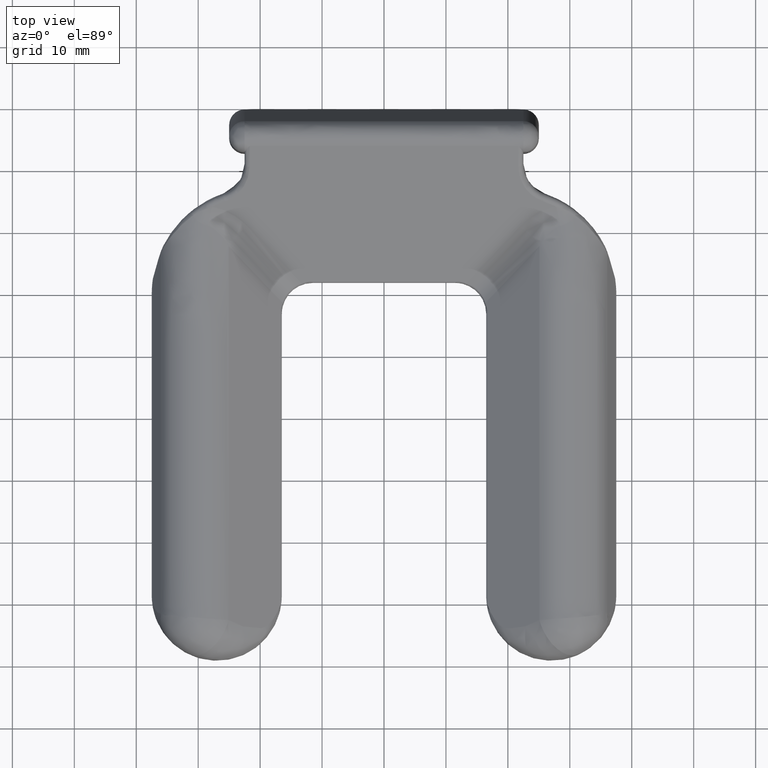
[diagram: clean part render]
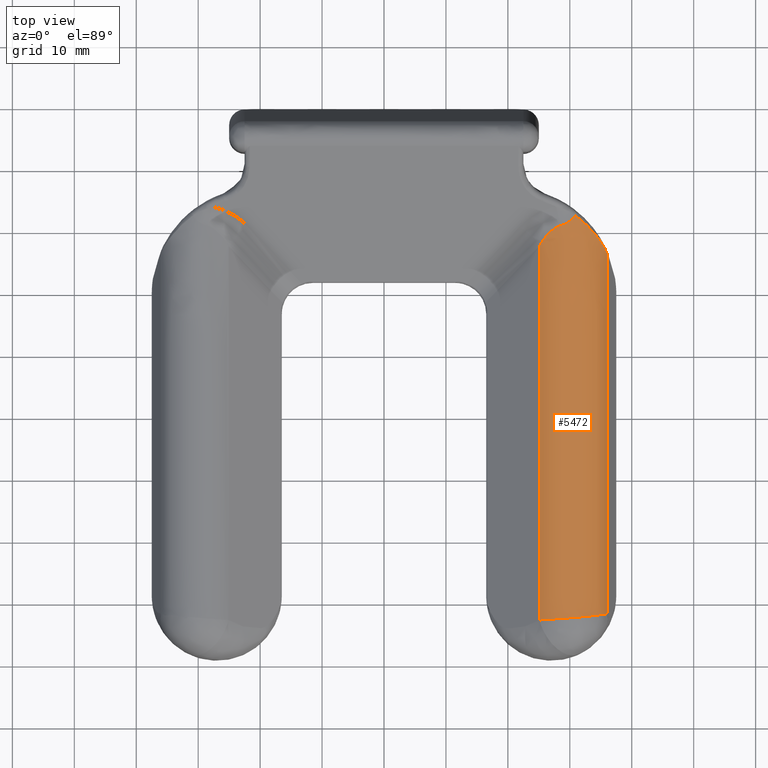
[diagram: same view with one face highlighted and labeled with its STEP entity id]
A machine part, top view. The second image highlights one B-rep face of the part: STEP entity #5472.
In plain terms, the highlighted face is a freeform B-spline surface patch.
Its self-contained STEP definition (entity closure, byte-faithful):
#3098=CARTESIAN_POINT('',(25.080732248594199,-22.231092365618149,9.442037946899319));
#3099=VERTEX_POINT('',#3098);
#3113=CARTESIAN_POINT('',(28.476199191799800,-18.961579891061699,10.927147848513661));
#3114=VERTEX_POINT('',#3113);
#3115=CARTESIAN_POINT('',(28.476199191799800,-18.961579891061699,10.927147848513661));
#3116=CARTESIAN_POINT('',(26.574626855563217,-19.570324436418741,10.650637953261995));
#3117=CARTESIAN_POINT('',(25.080732248594138,-22.231092365618121,9.442037946899246));
#3125=(BOUNDED_CURVE()B_SPLINE_CURVE(2,(#3115,#3116,#3117),.UNSPECIFIED.,.F.,.U.)CURVE()GEOMETRIC_REPRESENTATION_ITEM()QUASI_UNIFORM_CURVE()RATIONAL_B_SPLINE_CURVE((1.0,0.964326064811125,1.0))REPRESENTATION_ITEM(''));
#3126=EDGE_CURVE('',#3114,#3099,#3125,.T.);
#3473=CARTESIAN_POINT('',(25.080732248594199,-82.600092383999495,9.442037946899319));
#3474=VERTEX_POINT('',#3473);
#3513=CARTESIAN_POINT('',(25.080732248594199,-82.600092383999495,9.442037946899319));
#3514=CARTESIAN_POINT('',(25.080732248594199,-22.231092365618149,9.442037946899319));
#3515=QUASI_UNIFORM_CURVE('',1,(#3513,#3514),.UNSPECIFIED.,.F.,.U.);
#3516=EDGE_CURVE('',#3474,#3099,#3515,.T.);
#4804=CARTESIAN_POINT('',(36.107156005825757,-84.233469618168641,6.251483933545202));
#4805=CARTESIAN_POINT('',(36.106992641371747,-83.875955527518556,6.251419539067839));
#4806=CARTESIAN_POINT('',(36.107168063712372,-83.429062917143526,6.251481068185816));
#4807=CARTESIAN_POINT('',(36.106685672588434,-82.892791794536464,6.251288335331402));
#4808=CARTESIAN_POINT('',(36.106613183531572,-82.624656234339994,6.251260801715273));
#4809=CARTESIAN_POINT('',(36.106949101987091,-82.401209933956082,6.251396723705101));
#4810=CARTESIAN_POINT('',(36.107609759312133,-82.222452896355321,6.251661852887811));
#4811=CARTESIAN_POINT('',(36.108585349326347,-82.043695868396242,6.252052510343233));
#4812=CARTESIAN_POINT('',(36.110493790795097,-81.820249618583802,6.252815310521336));
#4813=CARTESIAN_POINT('',(36.113093150470348,-81.462735970417071,6.253851636077891));
#4814=CARTESIAN_POINT('',(36.110677239497001,-80.837086289644660,6.252870509867174));
#4815=CARTESIAN_POINT('',(36.110976358357057,-79.943301100440493,6.252990690286053));
#4816=CARTESIAN_POINT('',(36.110896816876419,-78.870758786629835,6.252960163440354));
#4817=CARTESIAN_POINT('',(36.110933833008687,-77.440702389565558,6.252975575273550));
#4818=CARTESIAN_POINT('',(36.110952722292048,-73.508047280731304,6.252982166579114));
#4819=CARTESIAN_POINT('',(36.110982428719822,-64.212680665096201,6.252993238505793));
#4820=CARTESIAN_POINT('',(36.110950577548621,-49.912116640506433,6.252980182987690));
#4821=CARTESIAN_POINT('',(36.111087724472668,-32.751439814808421,6.253055876948283));
#4822=CARTESIAN_POINT('',(36.110818007789597,-21.310988592773800,6.252904241212878));
#4823=CARTESIAN_POINT('',(36.111028607709123,-15.590762981800070,6.252979047824382));
#4824=CARTESIAN_POINT('',(36.095565015289623,-84.233469624483746,6.285712561285225));
#4825=CARTESIAN_POINT('',(36.095397601480151,-83.875955534142051,6.285646708849242));
#4826=CARTESIAN_POINT('',(36.095595961842868,-83.429062924137227,6.285717314496228));
#4827=CARTESIAN_POINT('',(36.095077185929647,-82.892791802818309,6.285510165359409));
#4828=CARTESIAN_POINT('',(36.094983643145092,-82.624656243465523,6.285474166075565));
#4829=CARTESIAN_POINT('',(36.095307798009323,-82.401209943658500,6.285605106463815));
#4830=CARTESIAN_POINT('',(36.095967191683293,-82.222452905470675,6.285869268956870));
#4831=CARTESIAN_POINT('',(36.096948538714400,-82.043695876184046,6.286261579067772));
#4832=CARTESIAN_POINT('',(36.098879704465467,-81.820249620237945,6.287032220211568));
#4833=CARTESIAN_POINT('',(36.101507601351749,-81.462735991583756,6.288078962546728));
#4834=CARTESIAN_POINT('',(36.098960147459628,-80.837086296901546,6.287050036501499));
#4835=CARTESIAN_POINT('',(36.099405477082982,-79.943301102597218,6.287227798025545));
#4836=CARTESIAN_POINT('',(36.099272954558529,-78.870758788766850,6.287176179962373));
#4837=CARTESIAN_POINT('',(36.099320353125641,-77.440702391194620,6.287195539214830));
#4838=CARTESIAN_POINT('',(36.099329993252027,-73.508047282483659,6.287198593464733));
#4839=CARTESIAN_POINT('',(36.099357392224853,-64.212680666589620,6.287209148300259));
#4840=CARTESIAN_POINT('',(36.099324588293982,-49.912116641575281,6.287194732086173));
#4841=CARTESIAN_POINT('',(36.099457517511127,-32.751439814607238,6.287268293962217));
#4842=CARTESIAN_POINT('',(36.099185699220932,-21.310988592806019,6.287115492817359));
#4843=CARTESIAN_POINT('',(36.099398178458053,-15.590762981820280,6.287191561716376));
#4844=CARTESIAN_POINT('',(36.071866247996823,-84.233469637195014,6.353957046453647));
#4845=CARTESIAN_POINT('',(36.071691908579339,-83.875955547519126,6.353889260726424));
#4846=CARTESIAN_POINT('',(36.071935764347757,-83.429062938203501,6.353976001289917));
#4847=CARTESIAN_POINT('',(36.071350225577177,-82.892791819804444,6.353744907443518));
#4848=CARTESIAN_POINT('',(36.071215548686993,-82.624656262053151,6.353693229467948));
#4849=CARTESIAN_POINT('',(36.071513334398823,-82.401209965196841,6.353812365788182));
#4850=CARTESIAN_POINT('',(36.072162137409087,-82.222452922437910,6.354069300552393));
#4851=CARTESIAN_POINT('',(36.073151318359791,-82.043695909431577,6.354460091797743));
#4852=CARTESIAN_POINT('',(36.075078159521581,-81.820249552565514,6.355219812615525));
#4853=CARTESIAN_POINT('',(36.077862937646401,-81.462736324823183,6.356319544099567));
#4854=CARTESIAN_POINT('',(36.074936781742153,-80.837086200748701,6.355174551615206));
#4855=CARTESIAN_POINT('',(36.075757409387030,-79.943301143910887,6.355491178766551));
#4856=CARTESIAN_POINT('',(36.075503550572712,-78.870758783787053,6.355394057076985));
#4857=CARTESIAN_POINT('',(36.075575472851533,-77.440702396907099,6.355422097013174));
#4858=CARTESIAN_POINT('',(36.075565574334902,-73.508047284954770,6.355417895371778));
#4859=CARTESIAN_POINT('',(36.075588978533908,-64.212680669975924,6.355427568211596));
#4860=CARTESIAN_POINT('',(36.075554048523720,-49.912116643547577,6.355410381068372));
#4861=CARTESIAN_POINT('',(36.075678873213263,-32.751439814254091,6.355479853652184));
#4862=CARTESIAN_POINT('',(36.075402400741218,-21.310988592859719,6.355324417910980));
#4863=CARTESIAN_POINT('',(36.075618930127092,-15.590762981859660,6.355403216709616));
#4864=CARTESIAN_POINT('',(36.040959159046480,-84.233469653250978,6.438717137445695));
#4865=CARTESIAN_POINT('',(36.040837538260938,-83.875955564452866,6.438669547690848));
#4866=CARTESIAN_POINT('',(36.040917976874788,-83.429062956129158,6.438695749412245));
#4867=CARTESIAN_POINT('',(36.040550883299041,-82.892791841447504,6.438546074560656));
#4868=CARTESIAN_POINT('',(36.040477797848993,-82.624656287292609,6.438516340492512));
#4869=CARTESIAN_POINT('',(36.040677257217830,-82.401209992452067,6.438596332644057));
#4870=CARTESIAN_POINT('',(36.041094197378683,-82.222452956209793,6.438763398221773));
#4871=CARTESIAN_POINT('',(36.041715056509751,-82.043695916082910,6.439012061163913));
#4872=CARTESIAN_POINT('',(36.042950007018753,-81.820249649586074,6.439506167407107));
#4873=CARTESIAN_POINT('',(36.044746699279969,-81.462735708285564,6.440224263734793));
#4874=CARTESIAN_POINT('',(36.044455417205832,-80.837086484148443,6.440094195704607));
#4875=CARTESIAN_POINT('',(36.044628905313182,-79.943301059371407,6.440169071832821));
#4876=CARTESIAN_POINT('',(36.044574836191707,-78.870758811287800,6.440145572422670));
#4877=CARTESIAN_POINT('',(36.044587248209467,-77.440702394832613,6.440150949945388));
#4878=CARTESIAN_POINT('',(36.044579843463858,-73.508047291653085,6.440147734829216));
#4879=CARTESIAN_POINT('',(36.044587691785068,-64.212680672567501,6.440152371740715));
#4880=CARTESIAN_POINT('',(36.044554398786779,-49.912116646507862,6.440133318652948));
#4881=CARTESIAN_POINT('',(36.044668326190227,-32.751439813651949,6.440197565622477));
#4882=CARTESIAN_POINT('',(36.044385280656897,-21.310988592956669,6.440038168745549));
#4883=CARTESIAN_POINT('',(36.044607587595543,-15.590762981906311,6.440120916754698));
#4884=CARTESIAN_POINT('',(36.015468250019410,-84.233469666173079,6.506189721802447));
#4885=CARTESIAN_POINT('',(36.015390271160911,-83.875955578111842,6.506158807350668));
#4886=CARTESIAN_POINT('',(36.015340061931767,-83.429062970591971,6.506136942950501));
#4887=CARTESIAN_POINT('',(36.015157541065527,-82.892791858947348,6.506056070417449));
#4888=CARTESIAN_POINT('',(36.015139649980618,-82.624656307779929,6.506046096512860));
#4889=CARTESIAN_POINT('',(36.015265872245067,-82.401210015534957,6.506096853443419));
#4890=CARTESIAN_POINT('',(36.015500935311962,-82.222452985598466,6.506193510995281));
#4891=CARTESIAN_POINT('',(36.015834130905937,-82.043695931053094,6.506331266175567));
#4892=CARTESIAN_POINT('',(36.016508959217063,-81.820249728531053,6.506610972806675));
#4893=CARTESIAN_POINT('',(36.017592909429737,-81.462735322155453,6.507053012320639));
#4894=CARTESIAN_POINT('',(36.019366885298773,-80.837086671890333,6.507719701181436));
#4895=CARTESIAN_POINT('',(36.018951446451510,-79.943301005525313,6.507572063295410));
#4896=CARTESIAN_POINT('',(36.019068234872393,-78.870758830128366,6.507611954283269));
#4897=CARTESIAN_POINT('',(36.019028377025741,-77.440702394086955,6.507597339965168));
#4898=CARTESIAN_POINT('',(36.019024026035332,-73.508047296587534,6.507595375351636));
#4899=CARTESIAN_POINT('',(36.019019268517582,-64.212680674761032,6.507595903725680));
#4900=CARTESIAN_POINT('',(36.018987370470143,-49.912116648792853,6.507575394483083));
#4901=CARTESIAN_POINT('',(36.019092967284571,-32.751439813192697,6.507635714001264));
#4902=CARTESIAN_POINT('',(36.018803943188630,-21.310988593028281,6.507472627339503));
#4903=CARTESIAN_POINT('',(36.019031359796713,-15.590762981942110,6.507558893563303));
#4904=CARTESIAN_POINT('',(35.989468808940160,-84.233469679138764,6.573435912515738));
#4905=CARTESIAN_POINT('',(35.989417842642517,-83.875955591851934,6.573416150775350));
#4906=CARTESIAN_POINT('',(35.989302881179889,-83.429062985070701,6.573368388465858));
#4907=CARTESIAN_POINT('',(35.989225884573329,-82.892791876626831,6.573330269802596));
#4908=CARTESIAN_POINT('',(35.989235738521657,-82.624656327800722,6.573331120492725));
#4909=CARTESIAN_POINT('',(35.989313562277673,-82.401210040697990,6.573361291234313));
#4910=CARTESIAN_POINT('',(35.989434465446458,-82.222453011354290,6.573410361549247));
#4911=CARTESIAN_POINT('',(35.989600538083522,-82.043695979326714,6.573478619282348));
#4912=CARTESIAN_POINT('',(35.989901973567399,-81.820249697393592,6.573603927690287));
#4913=CARTESIAN_POINT('',(35.990743727229663,-81.462735624038331,6.573944962714646));
#4914=CARTESIAN_POINT('',(35.993595408327977,-80.837086594348492,6.575062917738977));
#4915=CARTESIAN_POINT('',(35.992830443483790,-79.943301041791514,6.574770056355248));
#4916=CARTESIAN_POINT('',(35.993037167890371,-78.870758826925112,6.574846699410691));
#4917=CARTESIAN_POINT('',(35.992963800350182,-77.440702399402497,6.574818175397802));
#4918=CARTESIAN_POINT('',(35.992956546748452,-73.508047299044762,6.574815533063613));
#4919=CARTESIAN_POINT('',(35.992941805783332,-64.212680677970738,6.574812815705832));
#4920=CARTESIAN_POINT('',(35.992910260422001,-49.912116650700320,6.574790505064363));
#4921=CARTESIAN_POINT('',(35.993008154058181,-32.751439812849092,6.574847192644553));
#4922=CARTESIAN_POINT('',(35.992712565709631,-21.310988593075770,6.574680026289506));
#4923=CARTESIAN_POINT('',(35.992945434657507,-15.590762981976900,6.574770060891301));
#4924=CARTESIAN_POINT('',(35.956019056349781,-84.233469695412609,6.657064033919776));
#4925=CARTESIAN_POINT('',(35.955982780624723,-83.875955609109369,6.657051442487735));
#4926=CARTESIAN_POINT('',(35.955864680243970,-83.429063003335372,6.656999277996764));
#4927=CARTESIAN_POINT('',(35.955830703142752,-82.892791898661741,6.656983391891943));
#4928=CARTESIAN_POINT('',(35.955847472901048,-82.624656352872165,6.656988264928138));
#4929=CARTESIAN_POINT('',(35.955899459262028,-82.401210071926371,6.657005595300376));
#4930=CARTESIAN_POINT('',(35.955968054206480,-82.222453046932969,6.657028093569189));
#4931=CARTESIAN_POINT('',(35.956061419931537,-82.043696038230777,6.657058713732909));
#4932=CARTESIAN_POINT('',(35.956200232635368,-81.820249712786790,6.657101672864727));
#4933=CARTESIAN_POINT('',(35.957017232025727,-81.462736014834377,6.657416849529534));
#4934=CARTESIAN_POINT('',(35.960474989189557,-80.837086483839329,6.658841984215580));
#4935=CARTESIAN_POINT('',(35.959225407583631,-79.943301092831376,6.658332722994351));
#4936=CARTESIAN_POINT('',(35.959550115973791,-78.870758822055038,6.658462342335718));
#4937=CARTESIAN_POINT('',(35.959429635072048,-77.440702406451919,6.658413183977090));
#4938=CARTESIAN_POINT('',(35.959419521041738,-73.508047301890159,6.658410404213440));
#4939=CARTESIAN_POINT('',(35.959392329749321,-64.212680682004361,6.658403475765848));
#4940=CARTESIAN_POINT('',(35.959361234441403,-49.912116653025073,6.658378977334756));
#4941=CARTESIAN_POINT('',(35.959450002601223,-32.751439812433887,6.658431436536060));
#4942=CARTESIAN_POINT('',(35.959145333901702,-21.310988593130411,6.658258516889029));
#4943=CARTESIAN_POINT('',(35.959385605427123,-15.590762982018539,6.658353713536167));
#4944=CARTESIAN_POINT('',(35.914368281989312,-84.233469714998705,6.756713939933655));
#4945=CARTESIAN_POINT('',(35.914329822621987,-83.875955629868358,6.756701732864324));
#4946=CARTESIAN_POINT('',(35.914290726528293,-83.429063025506224,6.756678572630860));
#4947=CARTESIAN_POINT('',(35.914218720936333,-82.892791924645365,6.756652396266888));
#4948=CARTESIAN_POINT('',(35.914220469927187,-82.624656382236282,6.756652473739657));
#4949=CARTESIAN_POINT('',(35.914288774701440,-82.401210106604864,6.756673941493398));
#4950=CARTESIAN_POINT('',(35.914403910835901,-82.222453090801665,6.756709695592925));
#4951=CARTESIAN_POINT('',(35.914569861012183,-82.043696092425066,6.756761246573516));
#4952=CARTESIAN_POINT('',(35.914869124072659,-81.820249809849059,6.756852090922623));
#4953=CARTESIAN_POINT('',(35.915884970290612,-81.462736169044618,6.757232550940572));
#4954=CARTESIAN_POINT('',(35.919112851795219,-80.837086439549552,6.758631702234432));
#4955=CARTESIAN_POINT('',(35.917445612098803,-79.943301125748860,6.757926697757564));
#4956=CARTESIAN_POINT('',(35.917846296153733,-78.870758824345785,6.758093965186281));
#4957=CARTESIAN_POINT('',(35.917677586800217,-77.440702413133792,6.758023425420802));
#4958=CARTESIAN_POINT('',(35.917659609106593,-73.508047305930958,6.758018792095996));
#4959=CARTESIAN_POINT('',(35.917619862921732,-64.212680686458938,6.758007727933593));
#4960=CARTESIAN_POINT('',(35.917588375173501,-49.912116655864097,6.757980231315581));
#4961=CARTESIAN_POINT('',(35.917667293231887,-32.751439811913528,6.758028283083598));
#4962=CARTESIAN_POINT('',(35.917350297853837,-21.310988593197241,6.757847344292689));
#4963=CARTESIAN_POINT('',(35.917600364981752,-15.590762982065590,6.757949482356226));
#4964=CARTESIAN_POINT('',(35.856831902063838,-84.233469741122704,6.888620043490780));
#4965=CARTESIAN_POINT('',(35.856780378437257,-83.875955657539009,6.888602649285548));
#4966=CARTESIAN_POINT('',(35.856893410299548,-83.429063055280750,6.888643044791246));
#4967=CARTESIAN_POINT('',(35.856729556672761,-82.892791958531319,6.888579194081422));
#4968=CARTESIAN_POINT('',(35.856707959323728,-82.624656419115240,6.888569078301968));
#4969=CARTESIAN_POINT('',(35.856840477432733,-82.401210148587893,6.888615625273361));
#4970=CARTESIAN_POINT('',(35.857096235683727,-82.222453139699567,6.888707420269506));
#4971=CARTESIAN_POINT('',(35.857476394690217,-82.043696157474614,6.888845014483829));
#4972=CARTESIAN_POINT('',(35.858200645483109,-81.820249882317952,6.889105880468132));
#4973=CARTESIAN_POINT('',(35.859699807901762,-81.462736425290615,6.889688935378177));
#4974=CARTESIAN_POINT('',(35.861586168378089,-80.837086312549445,6.890558066382089));
#4975=CARTESIAN_POINT('',(35.859885829335369,-79.943301193464890,6.889823068961448));
#4976=CARTESIAN_POINT('',(35.860212773674832,-78.870758823086319,6.889963663188488));
#4977=CARTESIAN_POINT('',(35.860012523300099,-77.440702423981719,6.889879681808535));
#4978=CARTESIAN_POINT('',(35.859970889130658,-73.508047310432516,6.889866869593617));
#4979=CARTESIAN_POINT('',(35.859920588215722,-64.212680692619728,6.889852935173697));
#4980=CARTESIAN_POINT('',(35.859886193458323,-49.912116659462349,6.889820410813976));
#4981=CARTESIAN_POINT('',(35.859953524147180,-32.751439811269279,6.889863494823246));
#4982=CARTESIAN_POINT('',(35.859618886174623,-21.310988593272452,6.889670748754273));
#4983=CARTESIAN_POINT('',(35.859882692177571,-15.590762982124531,6.889782856487160));
#4984=CARTESIAN_POINT('',(35.781181452135861,-84.233469773668247,7.051660590589096));
#4985=CARTESIAN_POINT('',(35.781130272490010,-83.875955691908061,7.051640382156934));
#4986=CARTESIAN_POINT('',(35.781381988544197,-83.429063092878422,7.051750777120765));
#4987=CARTESIAN_POINT('',(35.781196935007792,-82.892791998918327,7.051663615435731));
#4988=CARTESIAN_POINT('',(35.781197552728059,-82.624656461100400,7.051657157184094));
#4989=CARTESIAN_POINT('',(35.781433336460971,-82.401210187128427,7.051749635463413));
#4990=CARTESIAN_POINT('',(35.781859916099897,-82.222453182816679,7.051923355565270));
#4991=CARTESIAN_POINT('',(35.782466977867387,-82.043696149061020,7.052172561641614));
#4992=CARTESIAN_POINT('',(35.783675168098128,-81.820250020936982,7.052673781667497));
#4993=CARTESIAN_POINT('',(35.785272877410613,-81.462735274337945,7.053328675803732));
#4994=CARTESIAN_POINT('',(35.785740535701130,-80.837086671049988,7.053513920492958));
#4995=CARTESIAN_POINT('',(35.784293241508209,-79.943301102129311,7.052894898265596));
#4996=CARTESIAN_POINT('',(35.784437727365408,-78.870758867623650,7.052955041609699));
#4997=CARTESIAN_POINT('',(35.784204640913167,-77.440702426763906,7.052860163663608));
#4998=CARTESIAN_POINT('',(35.784123753385700,-73.508047320230119,7.052832580189965));
#4999=CARTESIAN_POINT('',(35.784065838055383,-64.212680698251745,7.052817549923189));
#5000=CARTESIAN_POINT('',(35.784025660880737,-49.912116664464200,7.052777718080312));
#5001=CARTESIAN_POINT('',(35.784080848545017,-32.751439810290648,7.052816236809847));
#5002=CARTESIAN_POINT('',(35.783721520634217,-21.310988593392270,7.052606070563588));
#5003=CARTESIAN_POINT('',(35.784004143905811,-15.590762982191270,7.052732418884125));
#5004=CARTESIAN_POINT('',(35.684508747572607,-84.233469812130949,7.244229750493298));
#5005=CARTESIAN_POINT('',(35.684515003602357,-83.875955732488848,7.244231216929181));
#5006=CARTESIAN_POINT('',(35.684718076879548,-83.429063137420513,7.244330510237206));
#5007=CARTESIAN_POINT('',(35.684787254740812,-82.892792045583832,7.244339111530743));
#5008=CARTESIAN_POINT('',(35.684917087980779,-82.624656505971018,7.244383466658583));
#5009=CARTESIAN_POINT('',(35.685212160668662,-82.401210227403269,7.244505064412770));
#5010=CARTESIAN_POINT('',(35.685624651794917,-82.222453205636725,7.244683866676088));
#5011=CARTESIAN_POINT('',(35.686170317221759,-82.043696168289173,7.244923767788187));
#5012=CARTESIAN_POINT('',(35.687161872433457,-81.820249888846959,7.245369946969251));
#5013=CARTESIAN_POINT('',(35.688475093648677,-81.462735398763655,7.245925638489274));
#5014=CARTESIAN_POINT('',(35.688966056535953,-80.837086608105778,7.246040722657620));
#5015=CARTESIAN_POINT('',(35.687603724013130,-79.943301155494581,7.245461949956023));
#5016=CARTESIAN_POINT('',(35.687638485147261,-78.870758881940944,7.245475399803385));
#5017=CARTESIAN_POINT('',(35.687350781070343,-77.440702443764010,7.245360557502185));
#5018=CARTESIAN_POINT('',(35.687214561138518,-73.508047326287283,7.245312738836568));
#5019=CARTESIAN_POINT('',(35.687153555687402,-64.212680706985083,7.245298367144049));
#5020=CARTESIAN_POINT('',(35.687105446076927,-49.912116669456559,7.245249732015908));
#5021=CARTESIAN_POINT('',(35.687144000161922,-32.751439809403983,7.245281890551523));
#5022=CARTESIAN_POINT('',(35.686764344367937,-21.310988593471599,7.245054642137586));
#5023=CARTESIAN_POINT('',(35.687063005571240,-15.590762982260800,7.245195455121215));
#5024=CARTESIAN_POINT('',(35.547858004929360,-84.233469862083382,7.496707047344525));
#5025=CARTESIAN_POINT('',(35.547952336058003,-83.875955785179073,7.496747156695040));
#5026=CARTESIAN_POINT('',(35.548024405544098,-83.429063194860163,7.496784576672805));
#5027=CARTESIAN_POINT('',(35.548470978642683,-82.892792106503506,7.496961356490015));
#5028=CARTESIAN_POINT('',(35.548759125493973,-82.624656566848529,7.497076913413761));
#5029=CARTESIAN_POINT('',(35.549047290770240,-82.401210288862842,7.497196481985651));
#5030=CARTESIAN_POINT('',(35.549302068576587,-82.222453267044486,7.497305961885210));
#5031=CARTESIAN_POINT('',(35.549575830587230,-82.043696267104082,7.497426746394772));
#5032=CARTESIAN_POINT('',(35.549932676472203,-81.820249972510368,7.497589709635354));
#5033=CARTESIAN_POINT('',(35.550688183103723,-81.462736585002659,7.497920738070323));
#5034=CARTESIAN_POINT('',(35.551910885329143,-80.837086288303240,7.498348736621469));
#5035=CARTESIAN_POINT('',(35.550912432752853,-79.943301303675199,7.497925235899759));
#5036=CARTESIAN_POINT('',(35.550802017722688,-78.870758880223775,7.497881714366475));
#5037=CARTESIAN_POINT('',(35.550487412243442,-77.440702474990076,7.497758276884080));
#5038=CARTESIAN_POINT('',(35.550252530969260,-73.508047330727607,7.497674286905713));
#5039=CARTESIAN_POINT('',(35.550201878000593,-64.212680719583929,7.497666149689051));
#5040=CARTESIAN_POINT('',(35.550137983354936,-49.912116675344564,7.497603767400540));
#5041=CARTESIAN_POINT('',(35.550157052504701,-32.751439808430113,7.497629827527375));
#5042=CARTESIAN_POINT('',(35.549751268359607,-21.310988593516651,7.497376976610590));
#5043=CARTESIAN_POINT('',(35.550070250300728,-15.590762982340189,7.497538929917381));
#5044=CARTESIAN_POINT('',(35.362699538147467,-84.233469920963444,7.803947096530624));
#5045=CARTESIAN_POINT('',(35.362838633268183,-83.875955847145718,7.804011070400893));
#5046=CARTESIAN_POINT('',(35.362913126621280,-83.429063261055660,7.804028370035224));
#5047=CARTESIAN_POINT('',(35.363462839625022,-82.892792179564438,7.804273916513993));
#5048=CARTESIAN_POINT('',(35.363752934582308,-82.624656645662839,7.804398431039514));
#5049=CARTESIAN_POINT('',(35.363944382815532,-82.401210376580480,7.804468286375673));
#5050=CARTESIAN_POINT('',(35.364031279147007,-82.222453372826237,7.804483642261815));
#5051=CARTESIAN_POINT('',(35.364064041683527,-82.043696374710777,7.804466737017488));
#5052=CARTESIAN_POINT('',(35.363978814299578,-81.820250161180368,7.804370077698821));
#5053=CARTESIAN_POINT('',(35.364126165874232,-81.462736105474619,7.804387949467417));
#5054=CARTESIAN_POINT('',(35.365669202478479,-80.837086591042393,7.805122049339541));
#5055=CARTESIAN_POINT('',(35.365656624871107,-79.943301240375206,7.805126057009268));
#5056=CARTESIAN_POINT('',(35.365382074783817,-78.870758933241703,7.805022205040759));
#5057=CARTESIAN_POINT('',(35.365115616549943,-77.440702500160285,7.804921314760122));
#5058=CARTESIAN_POINT('',(35.364735304362242,-73.508047341643191,7.804784292774892));
#5059=CARTESIAN_POINT('',(35.364710207437291,-64.212680731942328,7.804786967511247));
#5060=CARTESIAN_POINT('',(35.364641602054327,-49.912116683068859,7.804719345609248));
#5061=CARTESIAN_POINT('',(35.364564542925763,-32.751439806972357,7.804690685930153));
#5062=CARTESIAN_POINT('',(35.364312922064819,-21.310988593731480,7.804525453343930));
#5063=CARTESIAN_POINT('',(35.364529369578143,-15.590762982415900,7.804632225621532));
#5064=CARTESIAN_POINT('',(35.118206552483322,-84.233469983266062,8.158226417270507));
#5065=CARTESIAN_POINT('',(35.118336504525423,-83.875955911407317,8.158285659218654));
#5066=CARTESIAN_POINT('',(35.118508405745871,-83.429063328315038,8.158345267572122));
#5067=CARTESIAN_POINT('',(35.118885201500873,-82.892792247334071,8.158514584364554));
#5068=CARTESIAN_POINT('',(35.119080735700827,-82.624656711424024,8.158599211222910));
#5069=CARTESIAN_POINT('',(35.119227404164640,-82.401210436171709,8.158653509338480));
#5070=CARTESIAN_POINT('',(35.119321688560603,-82.222453417977050,8.158677680723066));
#5071=CARTESIAN_POINT('',(35.119395944056748,-82.043696401361743,8.158685862947557));
#5072=CARTESIAN_POINT('',(35.119440704861617,-81.820250120386007,8.158660071306668));
#5073=CARTESIAN_POINT('',(35.119518233565302,-81.462736069618813,8.158630731238748));
#5074=CARTESIAN_POINT('',(35.120224950513922,-80.837086527181029,8.158981247100938));
#5075=CARTESIAN_POINT('',(35.120791441557913,-79.943301270435896,8.159262371257093));
#5076=CARTESIAN_POINT('',(35.120613454677333,-78.870758956656445,8.159197448446495));
#5077=CARTESIAN_POINT('',(35.120398998285367,-77.440702532126338,8.159123674375378));
#5078=CARTESIAN_POINT('',(35.119908594775502,-73.508047353655940,8.158948403242135));
#5079=CARTESIAN_POINT('',(35.119901542550849,-64.212680745534200,8.158959425122266));
#5080=CARTESIAN_POINT('',(35.119822305297923,-49.912116691453157,8.158879641813165));
#5081=CARTESIAN_POINT('',(35.119672296932613,-32.751439805431993,8.158819810996324));
#5082=CARTESIAN_POINT('',(35.119508374122482,-21.310988593840470,8.158678165666425));
#5083=CARTESIAN_POINT('',(35.119668039420851,-15.590762982473880,8.158774533693673));
#5084=CARTESIAN_POINT('',(34.763376798192752,-84.233470053333590,8.610015861192348));
#5085=CARTESIAN_POINT('',(34.763486539954769,-83.875955981537516,8.610061690610118));
#5086=CARTESIAN_POINT('',(34.763699952912532,-83.429063398412168,8.610158856932758));
#5087=CARTESIAN_POINT('',(34.763912507215679,-82.892792306901868,8.610238331647354));
#5088=CARTESIAN_POINT('',(34.764027321534918,-82.624656761286545,8.610283648719481));
#5089=CARTESIAN_POINT('',(34.764144889713201,-82.401210472657411,8.610337230800687));
#5090=CARTESIAN_POINT('',(34.764260051246097,-82.222453441133922,8.610395691835709));
#5091=CARTESIAN_POINT('',(34.764391902935657,-82.043696409215286,8.610465990261377));
#5092=CARTESIAN_POINT('',(34.764574489290538,-81.820250111651944,8.610565825383096));
#5093=CARTESIAN_POINT('',(34.764797354178121,-81.462736022543979,8.610670476665847));
#5094=CARTESIAN_POINT('',(34.764766167748213,-80.837086442494439,8.610550735260841));
#5095=CARTESIAN_POINT('',(34.765388493430777,-79.943301275476983,8.610831091914394));
#5096=CARTESIAN_POINT('',(34.765439858657793,-78.870758976036896,8.610861478653192));
#5097=CARTESIAN_POINT('',(34.765292116430970,-77.440702560866114,8.610820272248475));
#5098=CARTESIAN_POINT('',(34.764766297152619,-73.508047374362349,8.610639958280396));
#5099=CARTESIAN_POINT('',(34.764741957131761,-64.212680759418021,8.610636888534204));
#5100=CARTESIAN_POINT('',(34.764695379843751,-49.912116702448273,8.610591812030185));
#5101=CARTESIAN_POINT('',(34.764328202804450,-32.751439803036597,8.610333470048733));
#5102=CARTESIAN_POINT('',(34.764579050668928,-21.310988594578451,8.610608711809675));
#5103=CARTESIAN_POINT('',(34.764460050403962,-15.590762982513350,8.610428788453929));
#5104=CARTESIAN_POINT('',(34.465843447163287,-84.233470092365252,8.924168080020131));
#5105=CARTESIAN_POINT('',(34.465949645891342,-83.875956019033239,8.924216219142798));
#5106=CARTESIAN_POINT('',(34.466100352009903,-83.429063431921762,8.924276099534687));
#5107=CARTESIAN_POINT('',(34.466320779999819,-82.892792331838663,8.924375506862637));
#5108=CARTESIAN_POINT('',(34.466434320509443,-82.624656781890181,8.924427941391091));
#5109=CARTESIAN_POINT('',(34.466528235279043,-82.401210489534293,8.924471749114355));
#5110=CARTESIAN_POINT('',(34.466600901611130,-82.222453454671253,8.924505248657709));
#5111=CARTESIAN_POINT('',(34.466672421114843,-82.043696419060012,8.924539166067795));
#5112=CARTESIAN_POINT('',(34.466759267562558,-81.820250126697857,8.924580370160379));
#5113=CARTESIAN_POINT('',(34.466905782869190,-81.462736056056116,8.924648442876274));
#5114=CARTESIAN_POINT('',(34.467217767363273,-80.837086434560405,8.924777199529350));
#5115=CARTESIAN_POINT('',(34.467522836138109,-79.943301262967054,8.924855051481394));
#5116=CARTESIAN_POINT('',(34.467664269843617,-78.870758977892464,8.924930861200549));
#5117=CARTESIAN_POINT('',(34.467568498324830,-77.440702569762337,8.924911033215333));
#5118=CARTESIAN_POINT('',(34.467099435839657,-73.508047392356133,8.924757551954047));
#5119=CARTESIAN_POINT('',(34.467073653990617,-64.212680766355192,8.924765214178265));
#5120=CARTESIAN_POINT('',(34.466922232906242,-49.912116709784122,8.924619007527895));
#5121=CARTESIAN_POINT('',(34.466882356533162,-32.751439802025907,8.924682460048730));
#5122=CARTESIAN_POINT('',(34.466257902410689,-21.310988593514800,8.924125617997753));
#5123=CARTESIAN_POINT('',(34.466738381996187,-15.590762982506410,8.924518690321426));
#5124=CARTESIAN_POINT('',(33.408770317717732,-84.233470195300924,9.909614360717848));
#5125=CARTESIAN_POINT('',(33.408824645956791,-83.875956114932762,9.909640292757750));
#5126=CARTESIAN_POINT('',(33.408887150409562,-83.429063512969904,9.909674454753143));
#5127=CARTESIAN_POINT('',(33.408959832036253,-82.892792389353644,9.909690170563074));
#5128=CARTESIAN_POINT('',(33.408996767448443,-82.624656827303667,9.909693126226369));
#5129=CARTESIAN_POINT('',(33.409026912645587,-82.401210525694324,9.909691991459035));
#5130=CARTESIAN_POINT('',(33.409053484315521,-82.222453485738271,9.909696028312020));
#5131=CARTESIAN_POINT('',(33.409074459615709,-82.043696444177939,9.909689291583417));
#5132=CARTESIAN_POINT('',(33.409097725330469,-81.820250140027724,9.909676956479689));
#5133=CARTESIAN_POINT('',(33.409147606728709,-81.462736054723123,9.909685747709045));
#5134=CARTESIAN_POINT('',(33.409274015231517,-80.837086411997930,9.909794309001120));
#5135=CARTESIAN_POINT('',(33.409563297093278,-79.943301202895626,9.909994283154880));
#5136=CARTESIAN_POINT('',(33.409792794822998,-78.870758955958607,9.910099311480678));
#5137=CARTESIAN_POINT('',(33.409913890570706,-77.440702580331532,9.910182953357227));
#5138=CARTESIAN_POINT('',(33.409747364021797,-73.508047452416605,9.910167042448952));
#5139=CARTESIAN_POINT('',(33.409596091075471,-64.212680783838977,9.910097869039046));
#5140=CARTESIAN_POINT('',(33.409569640433389,-49.912116732785563,9.910072241677225));
#5141=CARTESIAN_POINT('',(33.408945221223419,-32.751439796113750,9.909596109256762));
#5142=CARTESIAN_POINT('',(33.409529167551241,-21.310988596105620,9.910218218095086));
#5143=CARTESIAN_POINT('',(33.409192751264420,-15.590762982423570,9.909825729462186));
#5144=CARTESIAN_POINT('',(32.380788062898631,-84.233470220848687,10.476029768159361));
#5145=CARTESIAN_POINT('',(32.380835279922110,-83.875956136848117,10.476058855159209));
#5146=CARTESIAN_POINT('',(32.380895626715287,-83.429063531562704,10.476089464525121));
#5147=CARTESIAN_POINT('',(32.380969038086789,-82.892792402021499,10.476138240806749));
#5148=CARTESIAN_POINT('',(32.381003774274127,-82.624656837664972,10.476165554457859));
#5149=CARTESIAN_POINT('',(32.381033949681999,-82.401210533292442,10.476189429408800));
#5150=CARTESIAN_POINT('',(32.381052550099987,-82.222453486618477,10.476194660976800));
#5151=CARTESIAN_POINT('',(32.381081409679616,-82.043696443284148,10.476219294645050));
#5152=CARTESIAN_POINT('',(32.381119402521797,-81.820250140179439,10.476253186999470));
#5153=CARTESIAN_POINT('',(32.381164887896382,-81.462736051119265,10.476270272116180));
#5154=CARTESIAN_POINT('',(32.381239676786549,-80.837086397827207,10.476267708682570));
#5155=CARTESIAN_POINT('',(32.381334336575108,-79.943301186594070,10.476308876980280));
#5156=CARTESIAN_POINT('',(32.381453828120073,-78.870758921016204,10.476410209187771));
#5157=CARTESIAN_POINT('',(32.381551489563563,-77.440702554312324,10.476494647065500));
#5158=CARTESIAN_POINT('',(32.381632422440603,-73.508047469328389,10.476574987843801));
#5159=CARTESIAN_POINT('',(32.381559269323652,-64.212680793227392,10.476527876629691));
#5160=CARTESIAN_POINT('',(32.381391600495839,-49.912116739198893,10.476401568859799));
#5161=CARTESIAN_POINT('',(32.381024772323933,-32.751439794448537,10.476189573275811));
#5162=CARTESIAN_POINT('',(32.380953629296101,-21.310988595748110,10.476120259059350));
#5163=CARTESIAN_POINT('',(32.381058465931361,-15.590762982157891,10.476199237119801));
#5164=CARTESIAN_POINT('',(30.144288628196030,-84.233470241016576,11.063876753515030));
#5165=CARTESIAN_POINT('',(30.144293752639278,-83.875956154476057,11.063909097338509));
#5166=CARTESIAN_POINT('',(30.144299578685750,-83.429063545634762,11.063953779840890));
#5167=CARTESIAN_POINT('',(30.144320991595109,-82.892792414452515,11.063986274956530));
#5168=CARTESIAN_POINT('',(30.144338731235241,-82.624656844221903,11.063992377169431));
#5169=CARTESIAN_POINT('',(30.144351596780378,-82.401210536899768,11.063998405846020));
#5170=CARTESIAN_POINT('',(30.144360137498019,-82.222453493874895,11.064010740850870));
#5171=CARTESIAN_POINT('',(30.144365202670219,-82.043696449499123,11.064017214405270));
#5172=CARTESIAN_POINT('',(30.144370367986429,-81.820250142415674,11.064022739442789));
#5173=CARTESIAN_POINT('',(30.144376814741669,-81.462736051351911,11.064049572899940));
#5174=CARTESIAN_POINT('',(30.144374215798550,-80.837086393838746,11.064120137667899));
#5175=CARTESIAN_POINT('',(30.144413402490532,-79.943301169585084,11.064178645741141));
#5176=CARTESIAN_POINT('',(30.144468765936580,-78.870758896095467,11.064220372798969));
#5177=CARTESIAN_POINT('',(30.144553215328401,-77.440702522516702,11.064273698128771));
#5178=CARTESIAN_POINT('',(30.144786017159561,-73.508047448318933,11.064359210462129));
#5179=CARTESIAN_POINT('',(30.144876283405701,-64.212680795665776,11.064346037768860));
#5180=CARTESIAN_POINT('',(30.144669973710091,-49.912116734062209,11.064231219541201));
#5181=CARTESIAN_POINT('',(30.144246799271929,-32.751439792829530,11.063951437113090));
#5182=CARTESIAN_POINT('',(30.144402415829699,-21.310988597592480,11.064052915104190));
#5183=CARTESIAN_POINT('',(30.144355724113449,-15.590762981765909,11.064016713357651));
#5184=CARTESIAN_POINT('',(28.970651755916819,-84.233470243322841,11.076127128739721));
#5185=CARTESIAN_POINT('',(28.970649621347810,-83.875956159721113,11.076159355850709));
#5186=CARTESIAN_POINT('',(28.970652500856890,-83.429063551720191,11.076184099179130));
#5187=CARTESIAN_POINT('',(28.970642753171809,-82.892792412771612,11.076233912882440));
#5188=CARTESIAN_POINT('',(28.970620586235679,-82.624656855484147,11.076282905750190));
#5189=CARTESIAN_POINT('',(28.970607813912689,-82.401210551890870,11.076317628947200));
#5190=CARTESIAN_POINT('',(28.970607939301601,-82.222453501058098,11.076328017214459));
#5191=CARTESIAN_POINT('',(28.970609585584540,-82.043696451282571,11.076339503880050));
#5192=CARTESIAN_POINT('',(28.970611050676190,-81.820250142761779,11.076355473716600));
#5193=CARTESIAN_POINT('',(28.970615856662452,-81.462736053068326,11.076370779071540));
#5194=CARTESIAN_POINT('',(28.970631827235870,-80.837086397663953,11.076384324830190));
#5195=CARTESIAN_POINT('',(28.970613872437809,-79.943301175112722,11.076458599619970));
#5196=CARTESIAN_POINT('',(28.970635622690050,-78.870758896724269,11.076521917034500));
#5197=CARTESIAN_POINT('',(28.970707925297340,-77.440702511301581,11.076557148199750));
#5198=CARTESIAN_POINT('',(28.970930193606680,-73.508047416834714,11.076583839411519));
#5199=CARTESIAN_POINT('',(28.971080925888749,-64.212680786773205,11.076602354955860));
#5200=CARTESIAN_POINT('',(28.970879240651879,-49.912116722980961,11.076492252923350));
#5201=CARTESIAN_POINT('',(28.970518740202799,-32.751439794011517,11.076256383474989));
#5202=CARTESIAN_POINT('',(28.970635658322031,-21.310988597952459,11.076303378331319));
#5203=CARTESIAN_POINT('',(28.970611652976221,-15.590762981489510,11.076301452293460));
#5204=CARTESIAN_POINT('',(27.284383248394828,-84.233470175825744,10.670387914790130));
#5205=CARTESIAN_POINT('',(27.284343022882169,-83.875956101106894,10.670453437163831));
#5206=CARTESIAN_POINT('',(27.284267233261790,-83.429063513373464,10.670565962725830));
#5207=CARTESIAN_POINT('',(27.284227392660870,-82.892792411059830,10.670634672781210));
#5208=CARTESIAN_POINT('',(27.284251010398009,-82.624656828302747,10.670609372824011));
#5209=CARTESIAN_POINT('',(27.284259766161810,-82.401210521221714,10.670599672696399));
#5210=CARTESIAN_POINT('',(27.284241496690068,-82.222453493051816,10.670629993348991));
#5211=CARTESIAN_POINT('',(27.284222448746132,-82.043696462833410,10.670661267543910));
#5212=CARTESIAN_POINT('',(27.284201333214781,-81.820250166793940,10.670695921150349));
#5213=CARTESIAN_POINT('',(27.284169117132389,-81.462736084584364,10.670750988277231));
#5214=CARTESIAN_POINT('',(27.284125218834500,-80.837086430530732,10.670845795618080));
#5215=CARTESIAN_POINT('',(27.284148699748169,-79.943301184964739,10.670858486962279));
#5216=CARTESIAN_POINT('',(27.284188450128401,-78.870758880336666,10.670854611751761));
#5217=CARTESIAN_POINT('',(27.284239552642791,-77.440702480751582,10.670857029206980));
#5218=CARTESIAN_POINT('',(27.284424875222300,-73.508047362907774,10.670804770925290));
#5219=CARTESIAN_POINT('',(27.284534747346161,-64.212680755327767,10.670864974207630));
#5220=CARTESIAN_POINT('',(27.284405877372919,-49.912116696856607,10.670778423007450));
#5221=CARTESIAN_POINT('',(27.284153806671569,-32.751439799847013,10.670612558345500));
#5222=CARTESIAN_POINT('',(27.284257025025180,-21.310988597240609,10.670658260399611));
#5223=CARTESIAN_POINT('',(27.284217741213091,-15.590762980303820,10.670644535057070));
#5224=CARTESIAN_POINT('',(26.608240871633711,-84.233470133707982,10.415526267762189));
#5225=CARTESIAN_POINT('',(26.608181860265240,-83.875956071136457,10.415612854805680));
#5226=CARTESIAN_POINT('',(26.608104181842879,-83.429063502380188,10.415720087961819));
#5227=CARTESIAN_POINT('',(26.608059655179090,-82.892792374302374,10.415792480531730));
#5228=CARTESIAN_POINT('',(26.607902566553129,-82.624656924333749,10.416011079512099));
#5229=CARTESIAN_POINT('',(26.607834864777502,-82.401210653295706,10.416119245561280));
#5230=CARTESIAN_POINT('',(26.607877122810120,-82.222453561365640,10.416060585765580));
#5231=CARTESIAN_POINT('',(26.607911340954651,-82.043696475911446,10.416013348764549));
#5232=CARTESIAN_POINT('',(26.607905501800630,-81.820250162058642,10.416018294256441));
#5233=CARTESIAN_POINT('',(26.607864621402431,-81.462736094742908,10.416076206012001));
#5234=CARTESIAN_POINT('',(26.607849657191760,-80.837086448084861,10.416118443783480));
#5235=CARTESIAN_POINT('',(26.607885404345321,-79.943301177923502,10.416104534416791));
#5236=CARTESIAN_POINT('',(26.607933097186990,-78.870758864769400,10.416077532141610));
#5237=CARTESIAN_POINT('',(26.607977740993700,-77.440702459694691,10.416067502812311));
#5238=CARTESIAN_POINT('',(26.608118501114120,-73.508047342425115,10.416021305108540));
#5239=CARTESIAN_POINT('',(26.608204520052340,-64.212680736926828,10.416075403733061));
#5240=CARTESIAN_POINT('',(26.608109228770878,-49.912116684523397,10.416008169676600));
#5241=CARTESIAN_POINT('',(26.607916803987148,-32.751439802820506,10.415879767214820));
#5242=CARTESIAN_POINT('',(26.607999743984351,-21.310988596821581,10.415916953375399));
#5243=CARTESIAN_POINT('',(26.607961468954841,-15.590762979672590,10.415902862850270));
#5244=CARTESIAN_POINT('',(25.858379047189359,-84.233469992585142,9.992351527652323));
#5245=CARTESIAN_POINT('',(25.858340552342980,-83.875955915145923,9.992408935543747));
#5246=CARTESIAN_POINT('',(25.858240063643649,-83.429063367238285,9.992550122728893));
#5247=CARTESIAN_POINT('',(25.857955120912159,-82.892792404609949,9.992919802880849));
#5248=CARTESIAN_POINT('',(25.858094764050250,-82.624656679014080,9.992725390042827));
#5249=CARTESIAN_POINT('',(25.858088755846900,-82.401210363763312,9.992707510798148));
#5250=CARTESIAN_POINT('',(25.857898564349529,-82.222453458724118,9.992972618830278));
#5251=CARTESIAN_POINT('',(25.857740585792829,-82.043696532150065,9.993190618690258));
#5252=CARTESIAN_POINT('',(25.857676674332659,-81.820250265291278,9.993286525481400));
#5253=CARTESIAN_POINT('',(25.857687205144192,-81.462736142329177,9.993283975798615));
#5254=CARTESIAN_POINT('',(25.857752242513499,-80.837086417804500,9.993211409107694));
#5255=CARTESIAN_POINT('',(25.857797302365341,-79.943301144284348,9.993171561207035));
#5256=CARTESIAN_POINT('',(25.857831057508410,-78.870758835954419,9.993147835420739));
#5257=CARTESIAN_POINT('',(25.857866517770351,-77.440702426846983,9.993127033146418));
#5258=CARTESIAN_POINT('',(25.857930783268941,-73.508047319896022,9.993116247359522));
#5259=CARTESIAN_POINT('',(25.857983564411931,-64.212680707529145,9.993141223668951));
#5260=CARTESIAN_POINT('',(25.857931550275222,-49.912116667505103,9.993106850976973));
#5261=CARTESIAN_POINT('',(25.857822742420471,-32.751439807262770,9.993034360328039));
#5262=CARTESIAN_POINT('',(25.857878507869231,-21.310988595906569,9.993055835889635));
#5263=CARTESIAN_POINT('',(25.857840638987369,-15.590762978676119,9.993043651809728));
#5264=CARTESIAN_POINT('',(25.496848700156871,-84.233469897039441,9.757852669872611));
#5265=CARTESIAN_POINT('',(25.496824246945501,-83.875955811078356,9.757891704565086));
#5266=CARTESIAN_POINT('',(25.496869718184030,-83.429063133408178,9.757840358561763));
#5267=CARTESIAN_POINT('',(25.496500816955539,-82.892792208854203,9.758323076170777));
#5268=CARTESIAN_POINT('',(25.495427620517120,-82.624657526716788,9.759734159536487));
#5269=CARTESIAN_POINT('',(25.495248148191440,-82.401211309188469,9.760031350646800));
#5270=CARTESIAN_POINT('',(25.495578414416219,-82.222453985844510,9.759544220197315));
#5271=CARTESIAN_POINT('',(25.495801136588309,-82.043696730922321,9.759244384885649));
#5272=CARTESIAN_POINT('',(25.495945904768860,-81.820250286596476,9.759049892375911));
#5273=CARTESIAN_POINT('',(25.496036558163659,-81.462736113488589,9.758933229001784));
#5274=CARTESIAN_POINT('',(25.496093496618130,-80.837086372752708,9.758862886305531));
#5275=CARTESIAN_POINT('',(25.496128716680559,-79.943301127731118,9.758828833280594));
#5276=CARTESIAN_POINT('',(25.496151666588059,-78.870758817618324,9.758811111337403));
#5277=CARTESIAN_POINT('',(25.496172291951890,-77.440702413404438,9.758798252143164));
#5278=CARTESIAN_POINT('',(25.496204730057080,-73.508047306805338,9.758796599330262));
#5279=CARTESIAN_POINT('',(25.496235890249050,-64.212680692290206,9.758809017694635));
#5280=CARTESIAN_POINT('',(25.496207243132190,-49.912116658236407,9.758790873346330));
#5281=CARTESIAN_POINT('',(25.496143572683948,-32.751439809729803,9.758747892969454));
#5282=CARTESIAN_POINT('',(25.496181458755650,-21.310988595372361,9.758763748714658));
#5283=CARTESIAN_POINT('',(25.496146308690928,-15.590762978139299,9.758750615530641));
#5284=CARTESIAN_POINT('',(25.207616226820459,-84.233469824184155,9.543860448888529));
#5285=CARTESIAN_POINT('',(25.207627032275312,-83.875955713986883,9.543852987606746));
#5286=CARTESIAN_POINT('',(25.207685634429300,-83.429063018688126,9.543783554444746));
#5287=CARTESIAN_POINT('',(25.207641167513749,-82.892791788413973,9.543827602363304));
#5288=CARTESIAN_POINT('',(25.208679537907329,-82.624655208004185,9.542507622730966));
#5289=CARTESIAN_POINT('',(25.207009840531718,-82.401210359355161,9.544633111413781));
#5290=CARTESIAN_POINT('',(25.207048619284219,-82.222453275421046,9.544613198213268));
#5291=CARTESIAN_POINT('',(25.206879096729089,-82.043696415188691,9.544835221046538));
#5292=CARTESIAN_POINT('',(25.206812134070290,-81.820250172052639,9.544923479681936));
#5293=CARTESIAN_POINT('',(25.206730124686441,-81.462735998093436,9.545027420873032));
#5294=CARTESIAN_POINT('',(25.206793459471719,-80.837086367741051,9.544950116018995));
#5295=CARTESIAN_POINT('',(25.206784081629209,-79.943301105010633,9.544964643373481));
#5296=CARTESIAN_POINT('',(25.206798065105161,-78.870758806144551,9.544951655932190));
#5297=CARTESIAN_POINT('',(25.206802816034649,-77.440702402024499,9.544949600549487));
#5298=CARTESIAN_POINT('',(25.206813076935479,-73.508047295321632,9.544949719587144));
#5299=CARTESIAN_POINT('',(25.206822738447201,-64.212680678737271,9.544953283640718));
#5300=CARTESIAN_POINT('',(25.206814963376530,-49.912116650020302,9.544948124111672));
#5301=CARTESIAN_POINT('',(25.206790462790028,-32.751439811948657,9.544932594613734));
#5302=CARTESIAN_POINT('',(25.206812829464880,-21.310988594857399,9.544941693042084));
#5303=CARTESIAN_POINT('',(25.206780043638730,-15.590762977661271,9.544928882530520));
#5304=CARTESIAN_POINT('',(24.983977346749938,-84.233469789433286,9.361836631715166));
#5305=CARTESIAN_POINT('',(24.983936460176729,-83.875955730981389,9.361898155797462));
#5306=CARTESIAN_POINT('',(24.984241283640671,-83.429062815983954,9.361502319950754));
#5307=CARTESIAN_POINT('',(24.983177842210971,-82.892792447158143,9.362891618048053));
#5308=CARTESIAN_POINT('',(24.982205227333608,-82.624657677044794,9.364150499818075));
#5309=CARTESIAN_POINT('',(24.982877950270250,-82.401210669064938,9.363290159484805));
#5310=CARTESIAN_POINT('',(24.982932348706520,-82.222453568669337,9.363213223222225));
#5311=CARTESIAN_POINT('',(24.983029734249271,-82.043696456327581,9.363086607562238));
#5312=CARTESIAN_POINT('',(24.983085708610361,-81.820250155071079,9.363013361152776));
#5313=CARTESIAN_POINT('',(24.983129459397801,-81.462736042261838,9.362954621904578));
#5314=CARTESIAN_POINT('',(24.983087795407421,-80.837086345338136,9.363005238323179));
#5315=CARTESIAN_POINT('',(24.983091656977219,-79.943301098072013,9.362997821069657));
#5316=CARTESIAN_POINT('',(24.983082649663540,-78.870758794998935,9.363007293409353));
#5317=CARTESIAN_POINT('',(24.983078494550131,-77.440702393183429,9.363009053305417));
#5318=CARTESIAN_POINT('',(24.983071499425680,-73.508047285508908,9.363009647975350));
#5319=CARTESIAN_POINT('',(24.983062930381500,-64.212680667493444,9.363006312006561));
#5320=CARTESIAN_POINT('',(24.983072201764969,-49.912116643114409,9.363011575825787));
#5321=CARTESIAN_POINT('',(24.983080123836611,-32.751439813823467,9.363019493440408));
#5322=CARTESIAN_POINT('',(24.983089502657229,-21.310988594410730,9.363022221780762));
#5323=CARTESIAN_POINT('',(24.983058802989209,-15.590762977262891,9.363010174085565));
#5324=CARTESIAN_POINT('',(24.874830750002548,-84.233469779780748,9.267262666713158));
#5325=CARTESIAN_POINT('',(24.874814858714359,-83.875955703585447,9.267291379256740));
#5326=CARTESIAN_POINT('',(24.874993374821120,-83.429062894751553,9.267063681800746));
#5327=CARTESIAN_POINT('',(24.874019776293061,-82.892792434097032,9.268331580633319));
#5328=CARTESIAN_POINT('',(24.873588486386250,-82.624657156735836,9.268895159788592));
#5329=CARTESIAN_POINT('',(24.873629219146139,-82.401210744738648,9.268841711796068));
#5330=CARTESIAN_POINT('',(24.873722932335578,-82.222453596740294,9.268721620246380));
#5331=CARTESIAN_POINT('',(24.873812734812539,-82.043696489987894,9.268605123162896));
#5332=CARTESIAN_POINT('',(24.873910011497930,-81.820250168696603,9.268477993303332));
#5333=CARTESIAN_POINT('',(24.873989889045699,-81.462736045789470,9.268370745921432));
#5334=CARTESIAN_POINT('',(24.873924100997531,-80.837086341783859,9.268450448398275));
#5335=CARTESIAN_POINT('',(24.873923911035611,-79.943301092404909,9.268445030818088));
#5336=CARTESIAN_POINT('',(24.873906750635211,-78.870758789879361,9.268461320807091));
#5337=CARTESIAN_POINT('',(24.873896926945140,-77.440702388478485,9.268466424050711));
#5338=CARTESIAN_POINT('',(24.873882223365229,-73.508047280531486,9.268465993721765));
#5339=CARTESIAN_POINT('',(24.873863932150339,-64.212680661678021,9.268459676487476));
#5340=CARTESIAN_POINT('',(24.873881905523628,-49.912116639571011,9.268470061531041));
#5341=CARTESIAN_POINT('',(24.873906493653418,-32.751439814786352,9.268490019956850));
#5342=CARTESIAN_POINT('',(24.873908860487969,-21.310988594178411,9.268489791311907));
#5343=CARTESIAN_POINT('',(24.873879500339211,-15.590762977058580,9.268477911967068));
#5344=CARTESIAN_POINT('',(24.820948532200131,-84.233469776635673,9.219096821203845));
#5345=CARTESIAN_POINT('',(24.820940067054622,-83.875955695950708,9.219116102937102));
#5346=CARTESIAN_POINT('',(24.821071779496560,-83.429062926358739,9.218950078945543));
#5347=CARTESIAN_POINT('',(24.820125949172049,-82.892792432785157,9.220182772123941));
#5348=CARTESIAN_POINT('',(24.819682860609088,-82.624657161576323,9.220760410746474));
#5349=CARTESIAN_POINT('',(24.819746221302051,-82.401210729509344,9.220679471973828));
#5350=CARTESIAN_POINT('',(24.819821013416210,-82.222453602599103,9.220582533931040));
#5351=CARTESIAN_POINT('',(24.819907314405061,-82.043696497581323,9.220470199463854));
#5352=CARTESIAN_POINT('',(24.820014922844340,-81.820250171218021,9.220329270836540));
#5353=CARTESIAN_POINT('',(24.820112369772382,-81.462736046839296,9.220198372416375));
#5354=CARTESIAN_POINT('',(24.820035594207020,-80.837086340347994,9.220291390209283));
#5355=CARTESIAN_POINT('',(24.820032817934880,-79.943301089530749,9.220287587364634));
#5356=CARTESIAN_POINT('',(24.820011774274949,-78.870758787298328,9.220306967562893));
#5357=CARTESIAN_POINT('',(24.819998994087982,-77.440702386083018,9.220313870063976));
#5358=CARTESIAN_POINT('',(24.819980632833541,-73.508047278009784,9.220312649338625));
#5359=CARTESIAN_POINT('',(24.819957349963961,-64.212680658728033,9.220304954885069));
#5360=CARTESIAN_POINT('',(24.819979716298139,-49.912116637774560,9.220317868758045));
#5361=CARTESIAN_POINT('',(24.820012721290539,-32.751439815274423,9.220343969973014));
#5362=CARTESIAN_POINT('',(24.820011526861311,-21.310988594060209,9.220342210388932));
#5363=CARTESIAN_POINT('',(24.819982860283591,-15.590762976955199,9.220330437199134));
#5364=B_SPLINE_SURFACE_WITH_KNOTS('',3,3,((#4804,#4824,#4844,#4864,#4884,#4904,#4924,#4944,#4964,#4984,#5004,#5024,#5044,#5064,#5084,#5104,#5124,#5144,#5164,#5184,#5204,#5224,#5244,#5264,#5284,#5304,#5324,#5344),(#4805,#4825,#4845,#4865,#4885,#4905,#4925,#4945,#4965,#4985,#5005,#5025,#5045,#5065,#5085,#5105,#5125,#5145,#5165,#5185,#5205,#5225,#5245,#5265,#5285,#5305,#5325,#5345),(#4806,#4826,#4846,#4866,#4886,#4906,#4926,#4946,#4966,#4986,#5006,#5026,#5046,#5066,#5086,#5106,#5126,#5146,#5166,#5186,#5206,#5226,#5246,#5266,#5286,#5306,#5326,#5346),(#4807,#4827,#4847,#4867,#4887,#4907,#4927,#4947,#4967,#4987,#5007,#5027,#5047,#5067,#5087,#5107,#5127,#5147,#5167,#5187,#5207,#5227,#5247,#5267,#5287,#5307,#5327,#5347),(#4808,#4828,#4848,#4868,#4888,#4908,#4928,#4948,#4968,#4988,#5008,#5028,#5048,#5068,#5088,#5108,#5128,#5148,#5168,#5188,#5208,#5228,#5248,#5268,#5288,#5308,#5328,#5348),(#4809,#4829,#4849,#4869,#4889,#4909,#4929,#4949,#4969,#4989,#5009,#5029,#5049,#5069,#5089,#5109,#5129,#5149,#5169,#5189,#5209,#5229,#5249,#5269,#5289,#5309,#5329,#5349),(#4810,#4830,#4850,#4870,#4890,#4910,#4930,#4950,#4970,#4990,#5010,#5030,#5050,#5070,#5090,#5110,#5130,#5150,#5170,#5190,#5210,#5230,#5250,#5270,#5290,#5310,#5330,#5350),(#4811,#4831,#4851,#4871,#4891,#4911,#4931,#4951,#4971,#4991,#5011,#5031,#5051,#5071,#5091,#5111,#5131,#5151,#5171,#5191,#5211,#5231,#5251,#5271,#5291,#5311,#5331,#5351),(#4812,#4832,#4852,#4872,#4892,#4912,#4932,#4952,#4972,#4992,#5012,#5032,#5052,#5072,#5092,#5112,#5132,#5152,#5172,#5192,#5212,#5232,#5252,#5272,#5292,#5312,#5332,#5352),(#4813,#4833,#4853,#4873,#4893,#4913,#4933,#4953,#4973,#4993,#5013,#5033,#5053,#5073,#5093,#5113,#5133,#5153,#5173,#5193,#5213,#5233,#5253,#5273,#5293,#5313,#5333,#5353),(#4814,#4834,#4854,#4874,#4894,#4914,#4934,#4954,#4974,#4994,#5014,#5034,#5054,#5074,#5094,#5114,#5134,#5154,#5174,#5194,#5214,#5234,#5254,#5274,#5294,#5314,#5334,#5354),(#4815,#4835,#4855,#4875,#4895,#4915,#4935,#4955,#4975,#4995,#5015,#5035,#5055,#5075,#5095,#5115,#5135,#5155,#5175,#5195,#5215,#5235,#5255,#5275,#5295,#5315,#5335,#5355),(#4816,#4836,#4856,#4876,#4896,#4916,#4936,#4956,#4976,#4996,#5016,#5036,#5056,#5076,#5096,#5116,#5136,#5156,#5176,#5196,#5216,#5236,#5256,#5276,#5296,#5316,#5336,#5356),(#4817,#4837,#4857,#4877,#4897,#4917,#4937,#4957,#4977,#4997,#5017,#5037,#5057,#5077,#5097,#5117,#5137,#5157,#5177,#5197,#5217,#5237,#5257,#5277,#5297,#5317,#5337,#5357),(#4818,#4838,#4858,#4878,#4898,#4918,#4938,#4958,#4978,#4998,#5018,#5038,#5058,#5078,#5098,#5118,#5138,#5158,#5178,#5198,#5218,#5238,#5258,#5278,#5298,#5318,#5338,#5358),(#4819,#4839,#4859,#4879,#4899,#4919,#4939,#4959,#4979,#4999,#5019,#5039,#5059,#5079,#5099,#5119,#5139,#5159,#5179,#5199,#5219,#5239,#5259,#5279,#5299,#5319,#5339,#5359),(#4820,#4840,#4860,#4880,#4900,#4920,#4940,#4960,#4980,#5000,#5020,#5040,#5060,#5080,#5100,#5120,#5140,#5160,#5180,#5200,#5220,#5240,#5260,#5280,#5300,#5320,#5340,#5360),(#4821,#4841,#4861,#4881,#4901,#4921,#4941,#4961,#4981,#5001,#5021,#5041,#5061,#5081,#5101,#5121,#5141,#5161,#5181,#5201,#5221,#5241,#5261,#5281,#5301,#5321,#5341,#5361),(#4822,#4842,#4862,#4882,#4902,#4922,#4942,#4962,#4982,#5002,#5022,#5042,#5062,#5082,#5102,#5122,#5142,#5162,#5182,#5202,#5222,#5242,#5262,#5282,#5302,#5322,#5342,#5362),(#4823,#4843,#4863,#4883,#4903,#4923,#4943,#4963,#4983,#5003,#5023,#5043,#5063,#5083,#5103,#5123,#5143,#5163,#5183,#5203,#5223,#5243,#5263,#5283,#5303,#5323,#5343,#5363)),.UNSPECIFIED.,.F.,.F.,.U.,(4,1,1,1,1,1,1,1,1,1,1,1,1,1,1,1,1,4),(4,1,1,1,1,1,1,1,1,1,1,1,1,1,2,2,2,1,1,1,1,1,4),(0.0,1.072542301995370,1.340677877494212,1.608813452993055,1.876949028491897,2.011016816241318,2.145084603990739,2.413220179489582,2.681355754988425,3.217626905986109,4.290169207981479,5.362711509976849,6.435253811972219,8.580338415962958,17.160676831925919,34.321353663851831,51.482030495777749,68.642707327703661),(0.0,0.108405487634230,0.216810975268460,0.271013719085575,0.325216462902690,0.433621950536920,0.542027438171150,0.650432925805380,0.867243901073840,1.084054876342300,1.300865851610760,1.734487802147680,2.168109752684600,2.601731703221520,3.468975604295360,6.937951208590720,10.406926812886081,12.141414615033760,12.575036565570681,13.008658516107600,13.442280466644521,13.659091441912979,13.875902417181440),.UNSPECIFIED.);
#5365=ORIENTED_EDGE('',*,*,#3516,.F.);
#5366=CARTESIAN_POINT('',(36.049751690212993,-81.510677089458994,6.425722288404909));
#5367=VERTEX_POINT('',#5366);
#5368=CARTESIAN_POINT('',(25.080732248594199,-82.600092383999495,9.442037946899319));
#5369=CARTESIAN_POINT('',(25.182320122897568,-82.593547884013191,9.521577560484030));
#5370=CARTESIAN_POINT('',(25.384716749942530,-82.580509076654423,9.680046763786057));
#5371=CARTESIAN_POINT('',(25.703063567011171,-82.560187455576809,9.895228548401855));
#5372=CARTESIAN_POINT('',(26.029213233021050,-82.539399902357843,10.092369264373099));
#5373=CARTESIAN_POINT('',(26.363149967252010,-82.518087573348083,10.269812423810940));
#5374=CARTESIAN_POINT('',(26.703353049343491,-82.496266053718671,10.427865619635019));
#5375=CARTESIAN_POINT('',(27.048727414326450,-82.473931217265203,10.566408458425551));
#5376=CARTESIAN_POINT('',(27.398097274953599,-82.451084157627946,10.685521896696550));
#5377=CARTESIAN_POINT('',(27.750344701535980,-82.427724586323563,10.785317248896710));
#5378=CARTESIAN_POINT('',(28.104377001783231,-82.403852580798315,10.865976975678000));
#5379=CARTESIAN_POINT('',(28.459139021498810,-82.379468121786957,10.927739280755400));
#5380=CARTESIAN_POINT('',(28.813613150887381,-82.354571215148468,10.970897498268529));
#5381=CARTESIAN_POINT('',(29.166822187289650,-82.329161861979017,10.995795510114670));
#5382=CARTESIAN_POINT('',(29.517831073073420,-82.303240057822833,11.002824176570780));
#5383=CARTESIAN_POINT('',(29.865748501938722,-82.276805824938350,10.992417525625060));
#5384=CARTESIAN_POINT('',(30.209728408965191,-82.249859085633616,10.965048914167919));
#5385=CARTESIAN_POINT('',(30.548970375873569,-82.222400131043202,10.921227653469399));
#5386=CARTESIAN_POINT('',(30.882722827121640,-82.194427893465502,10.861494048914089));
#5387=CARTESIAN_POINT('',(31.210274727381609,-82.165946311106183,10.786420563111029));
#5388=CARTESIAN_POINT('',(31.530988495168440,-82.136940883203039,10.696590748811900));
#5389=CARTESIAN_POINT('',(32.142543404329622,-82.079384702587049,10.493650768536220));
#5390=CARTESIAN_POINT('',(33.087708335252678,-81.979605839486169,10.054898004739940));
#5391=CARTESIAN_POINT('',(34.132487522371150,-81.844695805593517,9.287119899657858));
#5392=CARTESIAN_POINT('',(34.934048499169563,-81.721271483170568,8.430709830904899));
#5393=CARTESIAN_POINT('',(35.458074606296542,-81.630504080305016,7.677236260675863));
#5394=CARTESIAN_POINT('',(35.814510808137669,-81.560123038082267,7.017604604244530));
#5395=CARTESIAN_POINT('',(35.978254400266202,-81.525705887181388,6.605614305902336));
#5396=CARTESIAN_POINT('',(36.049751547844721,-81.510677945406115,6.425722160316780));
#5397=B_SPLINE_CURVE_WITH_KNOTS('',3,(#5368,#5369,#5370,#5371,#5372,#5373,#5374,#5375,#5376,#5377,#5378,#5379,#5380,#5381,#5382,#5383,#5384,#5385,#5386,#5387,#5388,#5389,#5390,#5391,#5392,#5393,#5394,#5395,#5396),.UNSPECIFIED.,.F.,.U.,(4,1,1,1,1,1,1,1,1,1,1,1,1,1,1,1,1,1,1,1,1,1,1,1,1,1,4),(0.0,0.029091245626322,0.057959377846734,0.086604483049567,0.115026649698732,0.143225968398196,0.171202531958985,0.198956435468765,0.226487776364203,0.253796654506159,0.280883172257898,0.307747434566452,0.334389549047251,0.360809626072233,0.387007778861562,0.412984123579142,0.438738779432121,0.464271868774578,0.489583517215587,0.514673853731909,0.539543010785521,0.635266412127378,0.749073333609461,0.830821818625757,0.899896579095204,0.956290375550654,0.999999451779539),.UNSPECIFIED.);
#5398=EDGE_CURVE('',#3474,#5367,#5397,.T.);
#5399=ORIENTED_EDGE('',*,*,#5398,.T.);
#5400=CARTESIAN_POINT('',(36.049751690212993,-23.375833150580799,6.425722288404909));
#5401=VERTEX_POINT('',#5400);
#5402=CARTESIAN_POINT('',(36.049751690212993,-81.510677089458994,6.425722288404909));
#5403=CARTESIAN_POINT('',(36.049751690212993,-23.375833150580799,6.425722288404909));
#5404=QUASI_UNIFORM_CURVE('',1,(#5402,#5403),.UNSPECIFIED.,.F.,.U.);
#5405=EDGE_CURVE('',#5367,#5401,#5404,.T.);
#5406=ORIENTED_EDGE('',*,*,#5405,.T.);
#5407=CARTESIAN_POINT('',(35.634282564544598,-22.521467849294400,7.341807447833439));
#5408=VERTEX_POINT('',#5407);
#5409=CARTESIAN_POINT('',(36.049751690212993,-23.375833150580799,6.425722288404909));
#5410=CARTESIAN_POINT('',(35.991159352762352,-23.234611311733499,6.584327814079248));
#5411=CARTESIAN_POINT('',(35.927747263630302,-23.090983271327410,6.738503277743868));
#5412=CARTESIAN_POINT('',(35.789719786472169,-22.804949301480011,7.042912982424316));
#5413=CARTESIAN_POINT('',(35.714937839517582,-22.662848805605151,7.193356539972652));
#5414=CARTESIAN_POINT('',(35.634282564544598,-22.521467849294400,7.341807447833430));
#5415=B_SPLINE_CURVE_WITH_KNOTS('',3,(#5409,#5410,#5411,#5412,#5413,#5414),.UNSPECIFIED.,.F.,.U.,(4,2,4),(0.0,0.500000000000000,1.0),.UNSPECIFIED.);
#5416=EDGE_CURVE('',#5401,#5408,#5415,.T.);
#5417=ORIENTED_EDGE('',*,*,#5416,.T.);
#5418=CARTESIAN_POINT('',(30.813282356744551,-17.264975355846101,10.872527652210501));
#5419=VERTEX_POINT('',#5418);
#5420=CARTESIAN_POINT('',(35.634282564544598,-22.521467849294400,7.341807447833439));
#5421=CARTESIAN_POINT('',(35.509242810507367,-22.304326569956050,7.571950671717212));
#5422=CARTESIAN_POINT('',(35.374556992063013,-22.082595759168331,7.789332616363277));
#5423=CARTESIAN_POINT('',(35.086165789336178,-21.634549092461938,8.204014681550170));
#5424=CARTESIAN_POINT('',(34.932449127535278,-21.408182356269698,8.401248089675130));
#5425=CARTESIAN_POINT('',(34.605395508709087,-20.953259322918299,8.777889513678385));
#5426=CARTESIAN_POINT('',(34.432057769939007,-20.724681777263079,8.957272739077284));
#5427=CARTESIAN_POINT('',(34.156386421715190,-20.381210724004159,9.213416998347555));
#5428=CARTESIAN_POINT('',(34.062058959687988,-20.266842365254291,9.296457373698921));
#5429=CARTESIAN_POINT('',(33.868894871505603,-20.039054390303288,9.457470188738734));
#5430=CARTESIAN_POINT('',(33.671078110164551,-19.812035227012160,9.613549134348906));
#5431=CARTESIAN_POINT('',(33.463693046889269,-19.586747666515450,9.759703478509950));
#5432=CARTESIAN_POINT('',(33.251357886929632,-19.362404088590100,9.900794403255604));
#5433=CARTESIAN_POINT('',(33.142674890800670,-19.250675345198509,9.968816338091536));
#5434=CARTESIAN_POINT('',(32.811045989398799,-18.919081048671519,10.163855694243621));
#5435=CARTESIAN_POINT('',(32.581886118770363,-18.702111333751631,10.282329439406050));
#5436=CARTESIAN_POINT('',(32.106738599547441,-18.276656186179320,10.495097703713290));
#5437=CARTESIAN_POINT('',(31.860754556145881,-18.068169026439641,10.589397599742060));
#5438=CARTESIAN_POINT('',(31.350866414265749,-17.659943105738630,10.751626392469850));
#5439=CARTESIAN_POINT('',(31.086969228280729,-17.460203366933939,10.819570666011350));
#5440=CARTESIAN_POINT('',(30.813282356744530,-17.264975355846119,10.872527652210501));
#5441=B_SPLINE_CURVE_WITH_KNOTS('',3,(#5420,#5421,#5422,#5423,#5424,#5425,#5426,#5427,#5428,#5429,#5430,#5431,#5432,#5433,#5434,#5435,#5436,#5437,#5438,#5439,#5440),.UNSPECIFIED.,.F.,.U.,(4,2,2,2,2,1,2,2,2,2,4),(0.0,0.125000000000001,0.250000000000003,0.375000000000004,0.437500000000004,0.500000000000004,0.562500000000004,0.625000000000004,0.750000000000003,0.875000000000001,1.0),.UNSPECIFIED.);
#5442=EDGE_CURVE('',#5408,#5419,#5441,.T.);
#5443=ORIENTED_EDGE('',*,*,#5442,.T.);
#5444=CARTESIAN_POINT('',(30.813282356744551,-17.264975355846101,10.872527652210501));
#5445=CARTESIAN_POINT('',(30.766305126591590,-17.381803978600079,10.881617501916921));
#5446=CARTESIAN_POINT('',(30.708944093356699,-17.492862281465769,10.892238990390119));
#5447=CARTESIAN_POINT('',(30.607409768952341,-17.650954547229301,10.909266860611879));
#5448=CARTESIAN_POINT('',(30.570900921775291,-17.702313910297690,10.915130691644070));
#5449=CARTESIAN_POINT('',(30.494110910167091,-17.800753552302481,10.926769903261340));
#5450=CARTESIAN_POINT('',(30.453707307025809,-17.848048962168651,10.932566821187660));
#5451=CARTESIAN_POINT('',(30.326992182562002,-17.984707628222441,10.949514941984640));
#5452=CARTESIAN_POINT('',(30.235190537657950,-18.068857859277081,10.960215891389771));
#5453=CARTESIAN_POINT('',(30.088346500588589,-18.186587737177650,10.973991565004839));
#5454=CARTESIAN_POINT('',(30.038197564217331,-18.224143654098039,10.978172758192500));
#5455=CARTESIAN_POINT('',(29.936439013369181,-18.295911666717949,10.985516010816260));
#5456=CARTESIAN_POINT('',(29.884727405035910,-18.330204891259861,10.988687940430159));
#5457=CARTESIAN_POINT('',(29.727447364293521,-18.428982658584921,10.996535104755980));
#5458=CARTESIAN_POINT('',(29.619749819888352,-18.489395994467639,10.999535632615419));
#5459=CARTESIAN_POINT('',(29.400047529594008,-18.601977695885061,11.000364690594990));
#5460=CARTESIAN_POINT('',(29.288036145540790,-18.654133410491379,10.998196478363029));
#5461=CARTESIAN_POINT('',(29.060628607285391,-18.751957367824470,10.988143324978219));
#5462=CARTESIAN_POINT('',(28.945228580909831,-18.797618232473791,10.980260576852160));
#5463=CARTESIAN_POINT('',(28.711680654111930,-18.883665500162710,10.958309867504649));
#5464=CARTESIAN_POINT('',(28.594121251883909,-18.923829862053829,10.944295035533800));
#5465=CARTESIAN_POINT('',(28.476199191799751,-18.961579891061699,10.927147848513680));
#5466=B_SPLINE_CURVE_WITH_KNOTS('',3,(#5444,#5445,#5446,#5447,#5448,#5449,#5450,#5451,#5452,#5453,#5454,#5455,#5456,#5457,#5458,#5459,#5460,#5461,#5462,#5463,#5464,#5465),.UNSPECIFIED.,.F.,.U.,(4,2,2,2,2,2,2,2,2,2,4),(0.0,0.125000000000004,0.187500000000005,0.250000000000006,0.375000000000005,0.437500000000004,0.500000000000003,0.625000000000002,0.750000000000001,0.875000000000001,1.0),.UNSPECIFIED.);
#5467=EDGE_CURVE('',#5419,#3114,#5466,.T.);
#5468=ORIENTED_EDGE('',*,*,#5467,.T.);
#5469=ORIENTED_EDGE('',*,*,#3126,.T.);
#5470=EDGE_LOOP('',(#5365,#5399,#5406,#5417,#5443,#5468,#5469));
#5471=FACE_OUTER_BOUND('',#5470,.T.);
#5472=ADVANCED_FACE('',(#5471),#5364,.T.);